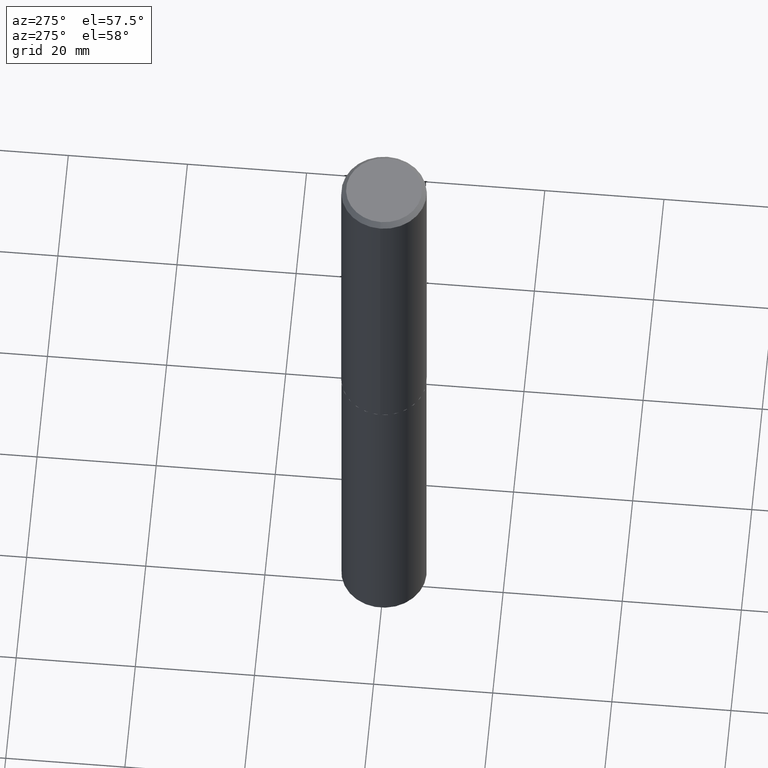
[diagram: clean part render]
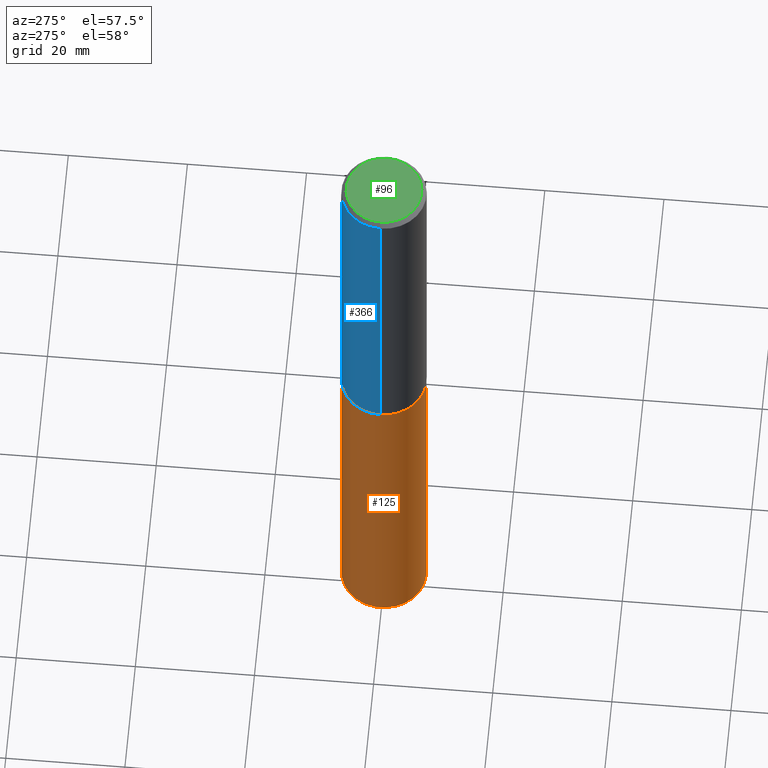
[diagram: same view with three faces highlighted in distinct colors, each labeled with its STEP entity id]
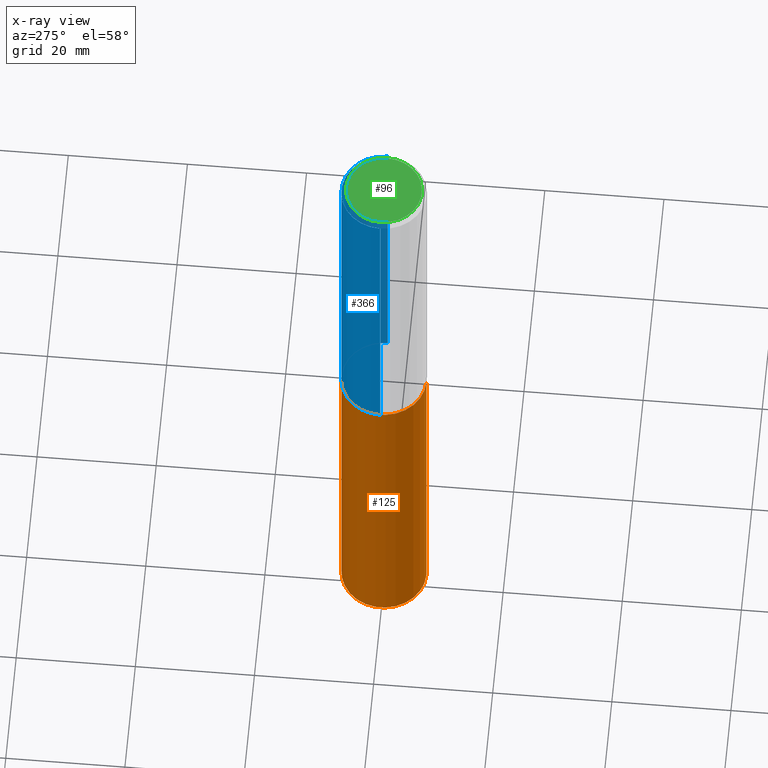
[diagram: x-ray of the same camera — body ghosted, the three highlighted faces saturated]
A machine part, auxiliary view with three faces highlighted in distinct colors.
The next image is the same camera in x-ray (body ghosted, the three faces saturated) — at least one of them is partly hidden behind the body in this view.
Their STEP definitions:

[orange] entity #125 — the highlighted cylindrical surface (partial cylindrical patch) has radius 7.1437 mm, axis along (-0, 0, 1).
#8 = FACE_OUTER_BOUND ( 'NONE', #82, .T. ) ;
#21 = VERTEX_POINT ( 'NONE', #29 ) ;
#22 = CARTESIAN_POINT ( 'NONE',  ( -1.963958253099205714E-15, -0.2812500000000080491, -2.312499999999999112 ) ) ;
#29 = CARTESIAN_POINT ( 'NONE',  ( -1.963958253099147733E-15, -0.2812500000000163203, -4.674639289628746752 ) ) ;
#34 = LINE ( 'NONE', #207, #373 ) ;
#36 = ORIENTED_EDGE ( 'NONE', *, *, #89, .T. ) ;
#45 = EDGE_CURVE ( 'NONE', #227, #347, #162, .T. ) ;
#59 = AXIS2_PLACEMENT_3D ( 'NONE', #258, #348, #81 ) ;
#72 = CARTESIAN_POINT ( 'NONE',  ( 1.998401444325338176E-15, 0.2812499999999919509, -2.312500000000000888 ) ) ;
#81 = DIRECTION ( 'NONE',  ( -6.982962677686266711E-15, -1.000000000000000000, 3.885294924322507688E-15 ) ) ;
#82 = EDGE_LOOP ( 'NONE', ( #140, #343, #36, #198 ) ) ;
#88 = DIRECTION ( 'NONE',  ( -6.982962677686266711E-15, -1.000000000000000000, 3.885294924322507688E-15 ) ) ;
#89 = EDGE_CURVE ( 'NONE', #21, #347, #34, .T. ) ;
#92 = VECTOR ( 'NONE', #127, 39.37007874015748143 ) ;
#102 = AXIS2_PLACEMENT_3D ( 'NONE', #247, #184, #363 ) ;
#122 = DIRECTION ( 'NONE',  ( -2.445543017653500849E-29, 3.491375063796593524E-15, 1.000000000000000000 ) ) ;
#124 = CYLINDRICAL_SURFACE ( 'NONE', #102, 0.2812500000000000000 ) ;
#125 = ADVANCED_FACE ( 'NONE', ( #8 ), #124, .T. ) ;
#127 = DIRECTION ( 'NONE',  ( -2.445543017653501129E-29, 3.491375063796593524E-15, 1.000000000000000000 ) ) ;
#140 = ORIENTED_EDGE ( 'NONE', *, *, #202, .F. ) ;
#146 = DIRECTION ( 'NONE',  ( -2.445543017653501129E-29, 3.491375063796593524E-15, 1.000000000000000000 ) ) ;
#162 = CIRCLE ( 'NONE', #322, 0.2812500000000000000 ) ;
#164 = VERTEX_POINT ( 'NONE', #189 ) ;
#184 = DIRECTION ( 'NONE',  ( -2.445543017653500849E-29, 3.491375063796593524E-15, 1.000000000000000000 ) ) ;
#189 = CARTESIAN_POINT ( 'NONE',  ( 1.998401444325395763E-15, 0.2812499999999836242, -4.674639289628748529 ) ) ;
#198 = ORIENTED_EDGE ( 'NONE', *, *, #45, .F. ) ;
#202 = EDGE_CURVE ( 'NONE', #164, #227, #338, .T. ) ;
#207 = CARTESIAN_POINT ( 'NONE',  ( -1.963958253099205714E-15, -0.2812500000000080491, -2.312499999999999112 ) ) ;
#217 = CARTESIAN_POINT ( 'NONE',  ( 1.998401444325396158E-15, 0.2812499999999919509, -2.312500000000000888 ) ) ;
#227 = VERTEX_POINT ( 'NONE', #217 ) ;
#242 = CARTESIAN_POINT ( 'NONE',  ( 5.655146614303128380E-29, -8.074050596074775072E-15, -2.312500000000000000 ) ) ;
#247 = CARTESIAN_POINT ( 'NONE',  ( 5.655146614303128380E-29, -8.074050596074775072E-15, -2.312500000000000000 ) ) ;
#258 = CARTESIAN_POINT ( 'NONE',  ( 1.143185986077971109E-28, -1.632116480909878347E-14, -4.674639289628747640 ) ) ;
#295 = CIRCLE ( 'NONE', #59, 0.2812500000000000000 ) ;
#322 = AXIS2_PLACEMENT_3D ( 'NONE', #242, #122, #88 ) ;
#338 = LINE ( 'NONE', #72, #92 ) ;
#343 = ORIENTED_EDGE ( 'NONE', *, *, #386, .T. ) ;
#347 = VERTEX_POINT ( 'NONE', #22 ) ;
#348 = DIRECTION ( 'NONE',  ( -2.445543017653500849E-29, 3.491375063796593524E-15, 1.000000000000000000 ) ) ;
#363 = DIRECTION ( 'NONE',  ( -6.982962677686266711E-15, -1.000000000000000000, 3.885294924322507688E-15 ) ) ;
#373 = VECTOR ( 'NONE', #146, 39.37007874015748143 ) ;
#386 = EDGE_CURVE ( 'NONE', #164, #21, #295, .T. ) ;

[blue] entity #366 — the highlighted cylindrical surface (partial cylindrical patch) has radius 7.1438 mm, axis along (-0, 0, 1).
#6 = CARTESIAN_POINT ( 'NONE',  ( -0.2812500000000001665, 1.998401444325282956E-15, -1.383450494134192829E-29 ) ) ;
#17 = EDGE_CURVE ( 'NONE', #211, #205, #274, .T. ) ;
#40 = DIRECTION ( 'NONE',  ( -2.445468806185136877E-29, 3.491481338843145188E-15, 1.000000000000000000 ) ) ;
#48 = DIRECTION ( 'NONE',  ( 1.000000000000000000, -6.982962677686266711E-15, 0.000000000000000000 ) ) ;
#83 = DIRECTION ( 'NONE',  ( -2.445468806185136597E-29, 3.491481338843145583E-15, 1.000000000000000000 ) ) ;
#110 = CIRCLE ( 'NONE', #328, 0.2812500000000000000 ) ;
#111 = DIRECTION ( 'NONE',  ( 1.000000000000000000, -6.982962677686266711E-15, 0.000000000000000000 ) ) ;
#136 = VERTEX_POINT ( 'NONE', #327 ) ;
#137 = AXIS2_PLACEMENT_3D ( 'NONE', #260, #83, #48 ) ;
#138 = ORIENTED_EDGE ( 'NONE', *, *, #17, .T. ) ;
#153 = CARTESIAN_POINT ( 'NONE',  ( -0.2812500000000002776, -6.073903411080069429E-15, -2.312000000000000277 ) ) ;
#168 = AXIS2_PLACEMENT_3D ( 'NONE', #346, #315, #267 ) ;
#193 = CARTESIAN_POINT ( 'NONE',  ( -0.2812500000000000000, -2.092305379296817590E-15, -0.03125000000000022204 ) ) ;
#205 = VERTEX_POINT ( 'NONE', #193 ) ;
#211 = VERTEX_POINT ( 'NONE', #153 ) ;
#218 = EDGE_CURVE ( 'NONE', #136, #244, #277, .T. ) ;
#220 = VECTOR ( 'NONE', #306, 39.37007874015748143 ) ;
#244 = VERTEX_POINT ( 'NONE', #283 ) ;
#259 = EDGE_CURVE ( 'NONE', #244, #205, #110, .T. ) ;
#260 = CARTESIAN_POINT ( 'NONE',  ( 5.653923879900035579E-29, -8.072304855405352780E-15, -2.312000000000000277 ) ) ;
#266 = EDGE_LOOP ( 'NONE', ( #333, #138, #316, #296 ) ) ;
#267 = DIRECTION ( 'NONE',  ( 1.000000000000000000, -6.982962677686265133E-15, 4.876176775795935232E-29 ) ) ;
#274 = LINE ( 'NONE', #6, #220 ) ;
#277 = LINE ( 'NONE', #364, #344 ) ;
#283 = CARTESIAN_POINT ( 'NONE',  ( 0.2812500000000000000, -2.073067044938111613E-15, -0.03125000000000022204 ) ) ;
#287 = DIRECTION ( 'NONE',  ( -2.445468806185136597E-29, 3.491481338843145583E-15, 1.000000000000000000 ) ) ;
#296 = ORIENTED_EDGE ( 'NONE', *, *, #218, .F. ) ;
#302 = EDGE_CURVE ( 'NONE', #136, #211, #339, .T. ) ;
#306 = DIRECTION ( 'NONE',  ( -2.445468806185136877E-29, 3.491481338843145188E-15, 1.000000000000000000 ) ) ;
#315 = DIRECTION ( 'NONE',  ( -2.445468806185136597E-29, 3.491481338843145583E-15, 1.000000000000000000 ) ) ;
#316 = ORIENTED_EDGE ( 'NONE', *, *, #259, .F. ) ;
#327 = CARTESIAN_POINT ( 'NONE',  ( 0.2812500000000002776, -1.003626310850461766E-14, -2.312000000000000277 ) ) ;
#328 = AXIS2_PLACEMENT_3D ( 'NONE', #387, #287, #111 ) ;
#333 = ORIENTED_EDGE ( 'NONE', *, *, #302, .T. ) ;
#339 = CIRCLE ( 'NONE', #137, 0.2812500000000002776 ) ;
#344 = VECTOR ( 'NONE', #40, 39.37007874015748143 ) ;
#346 = CARTESIAN_POINT ( 'NONE',  ( 0.000000000000000000, 0.000000000000000000, 0.000000000000000000 ) ) ;
#350 = FACE_OUTER_BOUND ( 'NONE', #266, .T. ) ;
#364 = CARTESIAN_POINT ( 'NONE',  ( 0.2812500000000001665, -1.963958253099263301E-15, 1.371424718192607572E-29 ) ) ;
#366 = ADVANCED_FACE ( 'NONE', ( #350 ), #378, .T. ) ;
#378 = CYLINDRICAL_SURFACE ( 'NONE', #168, 0.2812500000000001665 ) ;
#387 = CARTESIAN_POINT ( 'NONE',  ( 7.642090019328606165E-31, -1.091087918388490760E-16, -0.03125000000000022204 ) ) ;

[green] entity #96 — the highlighted planar face has unit normal (0, -0, -1).
#2 = FACE_OUTER_BOUND ( 'NONE', #351, .T. ) ;
#4 = DIRECTION ( 'NONE',  ( -1.000000000000000000, 6.982962677686265922E-15, -4.876176775795935793E-29 ) ) ;
#18 = ORIENTED_EDGE ( 'NONE', *, *, #103, .T. ) ;
#19 = CARTESIAN_POINT ( 'NONE',  ( -0.2500000000000000000, 1.800295065340990045E-15, 2.871796743988143476E-18 ) ) ;
#52 = CARTESIAN_POINT ( 'NONE',  ( -7.022889355157371044E-47, 1.002682474062840234E-32, 2.871796744000543383E-18 ) ) ;
#53 = VERTEX_POINT ( 'NONE', #213 ) ;
#96 = ADVANCED_FACE ( 'NONE', ( #2 ), #361, .F. ) ;
#103 = EDGE_CURVE ( 'NONE', #263, #53, #236, .T. ) ;
#108 = ORIENTED_EDGE ( 'NONE', *, *, #288, .T. ) ;
#114 = AXIS2_PLACEMENT_3D ( 'NONE', #334, #240, #186 ) ;
#118 = CARTESIAN_POINT ( 'NONE',  ( -3.511444677578685522E-47, 5.013412370314201172E-33, 1.435898372000271691E-18 ) ) ;
#135 = DIRECTION ( 'NONE',  ( 1.000000000000000000, -6.982962677686266711E-15, 4.876242311950517246E-29 ) ) ;
#156 = CIRCLE ( 'NONE', #225, 0.2500000000000000000 ) ;
#186 = DIRECTION ( 'NONE',  ( 1.000000000000000000, -6.982962677686266711E-15, 4.876242311950517246E-29 ) ) ;
#213 = CARTESIAN_POINT ( 'NONE',  ( 0.2500000000000000000, -1.876874176577487622E-15, 2.871796744013210224E-18 ) ) ;
#216 = AXIS2_PLACEMENT_3D ( 'NONE', #118, #273, #4 ) ;
#225 = AXIS2_PLACEMENT_3D ( 'NONE', #52, #292, #135 ) ;
#236 = CIRCLE ( 'NONE', #114, 0.2500000000000000000 ) ;
#240 = DIRECTION ( 'NONE',  ( -2.445468806185136597E-29, 3.491481338843145583E-15, 1.000000000000000000 ) ) ;
#263 = VERTEX_POINT ( 'NONE', #19 ) ;
#273 = DIRECTION ( 'NONE',  ( 2.438088387897960049E-29, -3.491481338843145188E-15, -1.000000000000000000 ) ) ;
#288 = EDGE_CURVE ( 'NONE', #53, #263, #156, .T. ) ;
#292 = DIRECTION ( 'NONE',  ( -2.445468806185136597E-29, 3.491481338843145583E-15, 1.000000000000000000 ) ) ;
#334 = CARTESIAN_POINT ( 'NONE',  ( -7.022889355157371044E-47, 1.002682474062840234E-32, 2.871796744000543383E-18 ) ) ;
#351 = EDGE_LOOP ( 'NONE', ( #18, #108 ) ) ;
#361 = PLANE ( 'NONE',  #216 ) ;